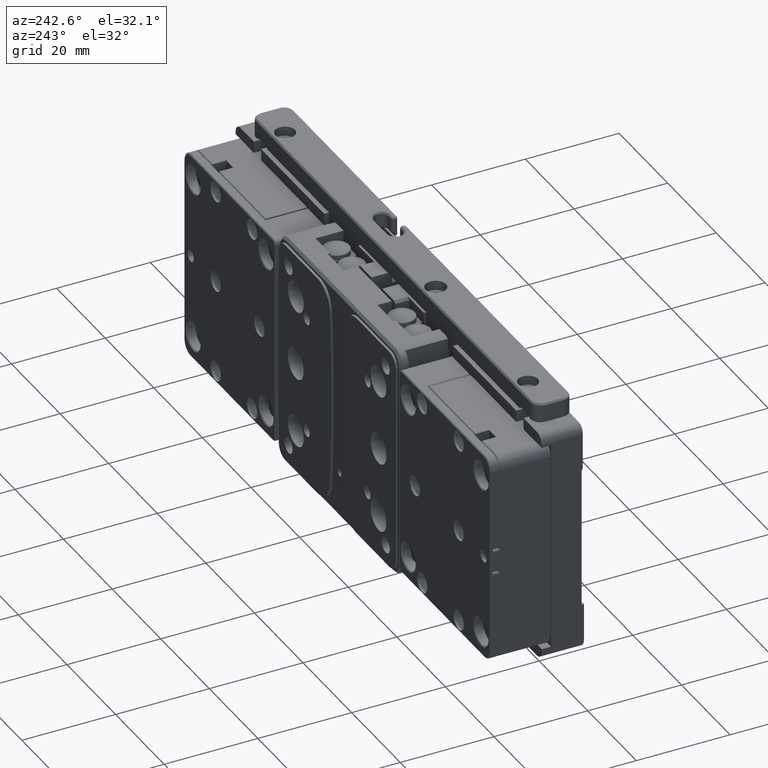
[diagram: clean part render]
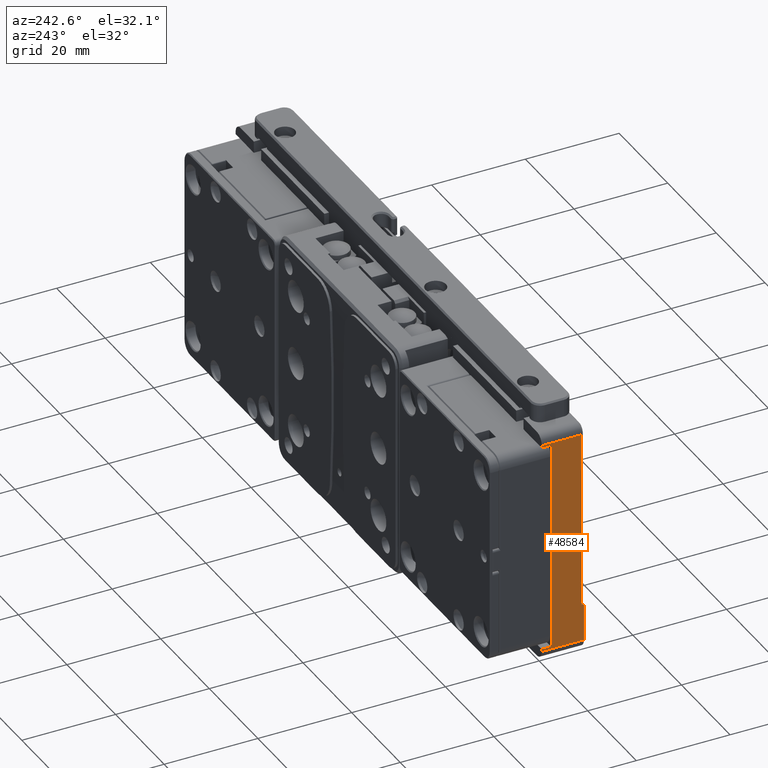
[diagram: same view with one face highlighted and labeled with its STEP entity id]
A machine part, auxiliary view. The second image highlights one B-rep face of the part: STEP entity #48584.
In plain terms, the highlighted planar face has unit normal (-1, 0, 0).
Its self-contained STEP definition (entity closure, byte-faithful):
#94 = VERTEX_POINT ( 'NONE', #107 ) ;
#107 = CARTESIAN_POINT ( 'NONE',  ( -62.99999999920001414, -7.500000000000000000, -15.00000000000000000 ) ) ;
#265 = DIRECTION ( 'NONE',  ( 0.000000000000000000, 1.000000000000000000, 0.000000000000000000 ) ) ;
#334 = CARTESIAN_POINT ( 'NONE',  ( -62.99999999879999990, -7.500000000000000000, 0.000000000000000000 ) ) ;
#626 = LINE ( 'NONE', #334, #24339 ) ;
#643 = VERTEX_POINT ( 'NONE', #46143 ) ;
#816 = CARTESIAN_POINT ( 'NONE',  ( -63.00002443762578253, -7.500010651707897935, 22.99999999057929756 ) ) ;
#1116 = CARTESIAN_POINT ( 'NONE',  ( -63.00000000000000000, -8.000000000000000000, -15.00000000000000000 ) ) ;
#1455 = EDGE_CURVE ( 'NONE', #31132, #29436, #55576, .T. ) ;
#3887 = VERTEX_POINT ( 'NONE', #43141 ) ;
#3939 = ORIENTED_EDGE ( 'NONE', *, *, #44661, .T. ) ;
#4470 = LINE ( 'NONE', #34781, #52261 ) ;
#4875 = VERTEX_POINT ( 'NONE', #21022 ) ;
#8456 = VERTEX_POINT ( 'NONE', #47097 ) ;
#8750 = VERTEX_POINT ( 'NONE', #28339 ) ;
#8815 = LINE ( 'NONE', #12509, #39865 ) ;
#9135 = LINE ( 'NONE', #51116, #48472 ) ;
#9154 = CARTESIAN_POINT ( 'NONE',  ( -63.00000000000000000, 1.000000000000000000, -25.00000000000000000 ) ) ;
#9475 = CARTESIAN_POINT ( 'NONE',  ( -63.00000000000000000, 1.000000000000000444, -23.00000000000000000 ) ) ;
#9842 = VERTEX_POINT ( 'NONE', #816 ) ;
#10183 = EDGE_CURVE ( 'NONE', #9842, #4875, #24729, .T. ) ;
#10313 = ORIENTED_EDGE ( 'NONE', *, *, #45360, .T. ) ;
#10484 = LINE ( 'NONE', #33147, #53973 ) ;
#11267 = EDGE_CURVE ( 'NONE', #3887, #31132, #30356, .T. ) ;
#12509 = CARTESIAN_POINT ( 'NONE',  ( -63.00000000000000000, 0.000000000000000000, -22.50000000000000000 ) ) ;
#12773 = DIRECTION ( 'NONE',  ( -0.000000000000000000, -1.000000000000000000, 0.000000000000000000 ) ) ;
#14344 = VERTEX_POINT ( 'NONE', #9475 ) ;
#15586 = VECTOR ( 'NONE', #265, 1000.000000000000000 ) ;
#16722 = EDGE_CURVE ( 'NONE', #32771, #9842, #9135, .T. ) ;
#17935 = DIRECTION ( 'NONE',  ( 0.000000000000000000, -0.000000000000000000, -1.000000000000000000 ) ) ;
#17963 = DIRECTION ( 'NONE',  ( -0.000000000000000000, -0.000000000000000000, -1.000000000000000000 ) ) ;
#18709 = EDGE_LOOP ( 'NONE', ( #32257, #44407, #10313, #52812, #39119, #3939, #21222, #28394, #19971, #21829, #21810 ) ) ;
#19551 = DIRECTION ( 'NONE',  ( -0.000000000000000000, -0.000000000000000000, -1.000000000000000000 ) ) ;
#19629 = VECTOR ( 'NONE', #12773, 1000.000000000000000 ) ;
#19692 = DIRECTION ( 'NONE',  ( 0.000000000000000000, 0.000000000000000000, 1.000000000000000000 ) ) ;
#19971 = ORIENTED_EDGE ( 'NONE', *, *, #54132, .T. ) ;
#20243 = LINE ( 'NONE', #9154, #28140 ) ;
#20911 = VECTOR ( 'NONE', #34034, 1000.000000000000000 ) ;
#21022 = CARTESIAN_POINT ( 'NONE',  ( -63.00000000000000000, 1.000000000000000444, 22.99999999447999954 ) ) ;
#21222 = ORIENTED_EDGE ( 'NONE', *, *, #27966, .T. ) ;
#21810 = ORIENTED_EDGE ( 'NONE', *, *, #42894, .F. ) ;
#21829 = ORIENTED_EDGE ( 'NONE', *, *, #48950, .T. ) ;
#22106 = LINE ( 'NONE', #1116, #15586 ) ;
#24220 = PLANE ( 'NONE',  #28328 ) ;
#24339 = VECTOR ( 'NONE', #17935, 1000.000000000000000 ) ;
#24729 = LINE ( 'NONE', #29271, #46693 ) ;
#25312 = DIRECTION ( 'NONE',  ( 0.000000000000000000, 0.000000000000000000, 1.000000000000000000 ) ) ;
#25797 = CARTESIAN_POINT ( 'NONE',  ( -63.00000000000000000, -1.000000000000000000, -25.00000000000000000 ) ) ;
#26842 = DIRECTION ( 'NONE',  ( -0.000000000000000000, -1.000000000000000000, 0.000000000000000000 ) ) ;
#27966 = EDGE_CURVE ( 'NONE', #8750, #14344, #10484, .T. ) ;
#28140 = VECTOR ( 'NONE', #17963, 1000.000000000000000 ) ;
#28328 = AXIS2_PLACEMENT_3D ( 'NONE', #54260, #53696, #19692 ) ;
#28339 = CARTESIAN_POINT ( 'NONE',  ( -63.00000000000000000, 1.000000000000000000, -22.50000000000000355 ) ) ;
#28394 = ORIENTED_EDGE ( 'NONE', *, *, #40948, .T. ) ;
#29271 = CARTESIAN_POINT ( 'NONE',  ( -63.00000000000000000, 0.000000000000000000, 22.99999998895999909 ) ) ;
#29436 = VERTEX_POINT ( 'NONE', #35893 ) ;
#30008 = CARTESIAN_POINT ( 'NONE',  ( -63.00000000000000000, -8.000000000000000000, -25.00000000000000000 ) ) ;
#30356 = LINE ( 'NONE', #51615, #19629 ) ;
#31132 = VERTEX_POINT ( 'NONE', #49998 ) ;
#32257 = ORIENTED_EDGE ( 'NONE', *, *, #16722, .T. ) ;
#32771 = VERTEX_POINT ( 'NONE', #43403 ) ;
#33147 = CARTESIAN_POINT ( 'NONE',  ( -63.00000000000000000, 1.000000000000000000, -25.00000000000000000 ) ) ;
#34034 = DIRECTION ( 'NONE',  ( -0.000000000000000000, -0.000000000000000000, -1.000000000000000000 ) ) ;
#34781 = CARTESIAN_POINT ( 'NONE',  ( -63.00000000000000000, 0.000000000000000000, -23.00000000000000000 ) ) ;
#34879 = DIRECTION ( 'NONE',  ( 0.000000000000000000, 1.000000000000000000, -0.000000000000000000 ) ) ;
#35113 = LINE ( 'NONE', #30008, #38557 ) ;
#35893 = CARTESIAN_POINT ( 'NONE',  ( -63.00000000000000000, -1.000000000000000000, -22.50000000000000355 ) ) ;
#37245 = FACE_OUTER_BOUND ( 'NONE', #18709, .T. ) ;
#38557 = VECTOR ( 'NONE', #51558, 1000.000000000000000 ) ;
#39119 = ORIENTED_EDGE ( 'NONE', *, *, #1455, .T. ) ;
#39865 = VECTOR ( 'NONE', #34879, 1000.000000000000000 ) ;
#40948 = EDGE_CURVE ( 'NONE', #14344, #643, #4470, .T. ) ;
#41763 = DIRECTION ( 'NONE',  ( 0.000000000000000000, 1.000000000000000000, -0.000000000000000000 ) ) ;
#42894 = EDGE_CURVE ( 'NONE', #32771, #94, #626, .T. ) ;
#43141 = CARTESIAN_POINT ( 'NONE',  ( -63.00000000000000000, 1.000000000000000000, 22.50000000000000355 ) ) ;
#43403 = CARTESIAN_POINT ( 'NONE',  ( -63.00000029687740977, -7.500000297478000455, 15.00000000000000000 ) ) ;
#44407 = ORIENTED_EDGE ( 'NONE', *, *, #10183, .T. ) ;
#44661 = EDGE_CURVE ( 'NONE', #29436, #8750, #8815, .T. ) ;
#45360 = EDGE_CURVE ( 'NONE', #4875, #3887, #20243, .T. ) ;
#46143 = CARTESIAN_POINT ( 'NONE',  ( -63.00000000000000000, -8.000000000000000000, -23.00000000000000000 ) ) ;
#46693 = VECTOR ( 'NONE', #41763, 1000.000000000000000 ) ;
#47097 = CARTESIAN_POINT ( 'NONE',  ( -63.00000000000000000, -8.000000000000000000, -15.00000000000000000 ) ) ;
#48472 = VECTOR ( 'NONE', #25312, 1000.000000000000000 ) ;
#48584 = ADVANCED_FACE ( 'NONE', ( #37245 ), #24220, .T. ) ;
#48950 = EDGE_CURVE ( 'NONE', #8456, #94, #22106, .T. ) ;
#49998 = CARTESIAN_POINT ( 'NONE',  ( -63.00000000000000000, -1.000000000000000000, 22.50000000000000355 ) ) ;
#51116 = CARTESIAN_POINT ( 'NONE',  ( -63.00000000000000000, -7.500000594956000022, -25.00000000000000000 ) ) ;
#51558 = DIRECTION ( 'NONE',  ( 0.000000000000000000, 0.000000000000000000, 1.000000000000000000 ) ) ;
#51615 = CARTESIAN_POINT ( 'NONE',  ( -63.00000000000000000, 0.000000000000000000, 22.50000000000000000 ) ) ;
#52261 = VECTOR ( 'NONE', #26842, 1000.000000000000000 ) ;
#52812 = ORIENTED_EDGE ( 'NONE', *, *, #11267, .T. ) ;
#53696 = DIRECTION ( 'NONE',  ( -1.000000000000000000, 0.000000000000000000, 0.000000000000000000 ) ) ;
#53973 = VECTOR ( 'NONE', #19551, 1000.000000000000000 ) ;
#54132 = EDGE_CURVE ( 'NONE', #643, #8456, #35113, .T. ) ;
#54260 = CARTESIAN_POINT ( 'NONE',  ( -63.00000000000000000, 0.000000000000000000, -25.00000000000000000 ) ) ;
#55576 = LINE ( 'NONE', #25797, #20911 ) ;